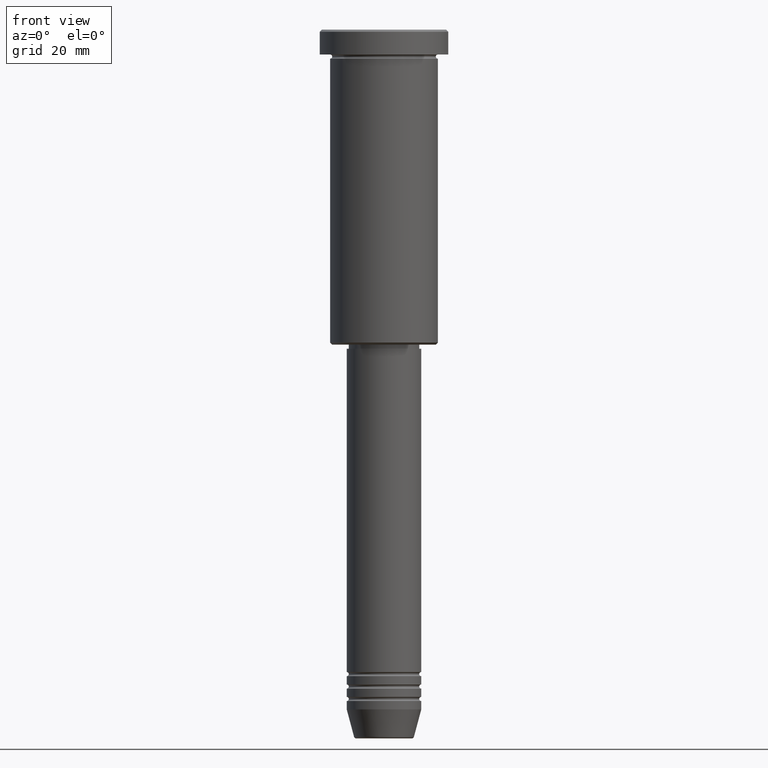
[diagram: clean part render]
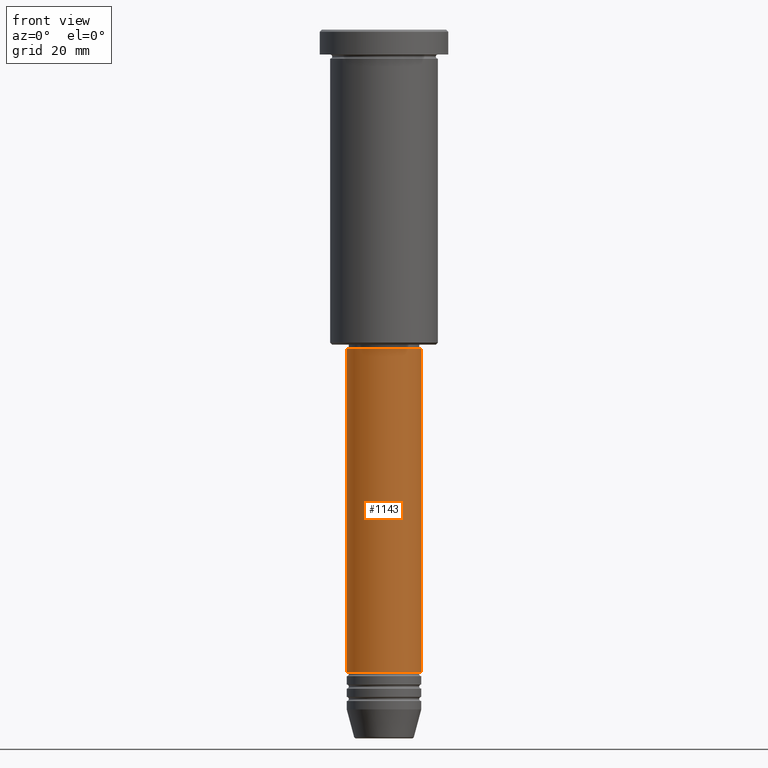
[diagram: same view with one face highlighted and labeled with its STEP entity id]
A machine part, front view. The second image highlights one B-rep face of the part: STEP entity #1143.
In plain terms, the highlighted cylindrical surface (partial cylindrical patch) has radius 9 mm, axis along (-0, -0, 1).
Its self-contained STEP definition (entity closure, byte-faithful):
#40 = ORIENTED_EDGE ( 'NONE', *, *, #590, .F. ) ;
#81 = LINE ( 'NONE', #1066, #1140 ) ;
#156 = CIRCLE ( 'NONE', #448, 9.000000000000000000 ) ;
#176 = DIRECTION ( 'NONE',  ( 1.000000000000000000, 0.000000000000000000, 0.000000000000000000 ) ) ;
#193 = CARTESIAN_POINT ( 'NONE',  ( 0.000000000000000000, 0.000000000000000000, 0.000000000000000000 ) ) ;
#249 = EDGE_CURVE ( 'NONE', #525, #670, #81, .T. ) ;
#266 = EDGE_LOOP ( 'NONE', ( #444, #774, #745, #40 ) ) ;
#275 = EDGE_CURVE ( 'NONE', #617, #303, #446, .T. ) ;
#303 = VERTEX_POINT ( 'NONE', #708 ) ;
#311 = EDGE_CURVE ( 'NONE', #525, #617, #156, .T. ) ;
#381 = CARTESIAN_POINT ( 'NONE',  ( -9.000000000000000000, 1.102182119232617714E-15, -154.9999999999999716 ) ) ;
#386 = AXIS2_PLACEMENT_3D ( 'NONE', #193, #546, #473 ) ;
#416 = CARTESIAN_POINT ( 'NONE',  ( 0.000000000000000000, 0.000000000000000000, -77.00000000000001421 ) ) ;
#444 = ORIENTED_EDGE ( 'NONE', *, *, #249, .F. ) ;
#446 = LINE ( 'NONE', #521, #1018 ) ;
#448 = AXIS2_PLACEMENT_3D ( 'NONE', #712, #998, #1088 ) ;
#458 = FACE_OUTER_BOUND ( 'NONE', #266, .T. ) ;
#473 = DIRECTION ( 'NONE',  ( 1.000000000000000000, 0.000000000000000000, 0.000000000000000000 ) ) ;
#521 = CARTESIAN_POINT ( 'NONE',  ( 9.000000000000000000, 0.000000000000000000, 0.000000000000000000 ) ) ;
#525 = VERTEX_POINT ( 'NONE', #381 ) ;
#529 = DIRECTION ( 'NONE',  ( -0.000000000000000000, -0.000000000000000000, 1.000000000000000000 ) ) ;
#546 = DIRECTION ( 'NONE',  ( -0.000000000000000000, -0.000000000000000000, 1.000000000000000000 ) ) ;
#590 = EDGE_CURVE ( 'NONE', #670, #303, #956, .T. ) ;
#608 = DIRECTION ( 'NONE',  ( -0.000000000000000000, -0.000000000000000000, 1.000000000000000000 ) ) ;
#617 = VERTEX_POINT ( 'NONE', #1112 ) ;
#670 = VERTEX_POINT ( 'NONE', #1131 ) ;
#706 = CYLINDRICAL_SURFACE ( 'NONE', #386, 9.000000000000000000 ) ;
#708 = CARTESIAN_POINT ( 'NONE',  ( 9.000000000000000000, 0.000000000000000000, -77.00000000000001421 ) ) ;
#712 = CARTESIAN_POINT ( 'NONE',  ( 0.000000000000000000, 0.000000000000000000, -154.9999999999999716 ) ) ;
#745 = ORIENTED_EDGE ( 'NONE', *, *, #275, .T. ) ;
#760 = AXIS2_PLACEMENT_3D ( 'NONE', #416, #608, #176 ) ;
#774 = ORIENTED_EDGE ( 'NONE', *, *, #311, .T. ) ;
#902 = DIRECTION ( 'NONE',  ( -0.000000000000000000, -0.000000000000000000, 1.000000000000000000 ) ) ;
#956 = CIRCLE ( 'NONE', #760, 9.000000000000000000 ) ;
#998 = DIRECTION ( 'NONE',  ( -0.000000000000000000, -0.000000000000000000, 1.000000000000000000 ) ) ;
#1018 = VECTOR ( 'NONE', #902, 1000.000000000000000 ) ;
#1066 = CARTESIAN_POINT ( 'NONE',  ( -9.000000000000000000, 1.102182119232617714E-15, 0.000000000000000000 ) ) ;
#1088 = DIRECTION ( 'NONE',  ( 1.000000000000000000, 0.000000000000000000, 0.000000000000000000 ) ) ;
#1112 = CARTESIAN_POINT ( 'NONE',  ( 9.000000000000000000, 0.000000000000000000, -154.9999999999999716 ) ) ;
#1131 = CARTESIAN_POINT ( 'NONE',  ( -9.000000000000000000, 1.102182119232617714E-15, -77.00000000000001421 ) ) ;
#1140 = VECTOR ( 'NONE', #529, 1000.000000000000000 ) ;
#1143 = ADVANCED_FACE ( 'NONE', ( #458 ), #706, .T. ) ;